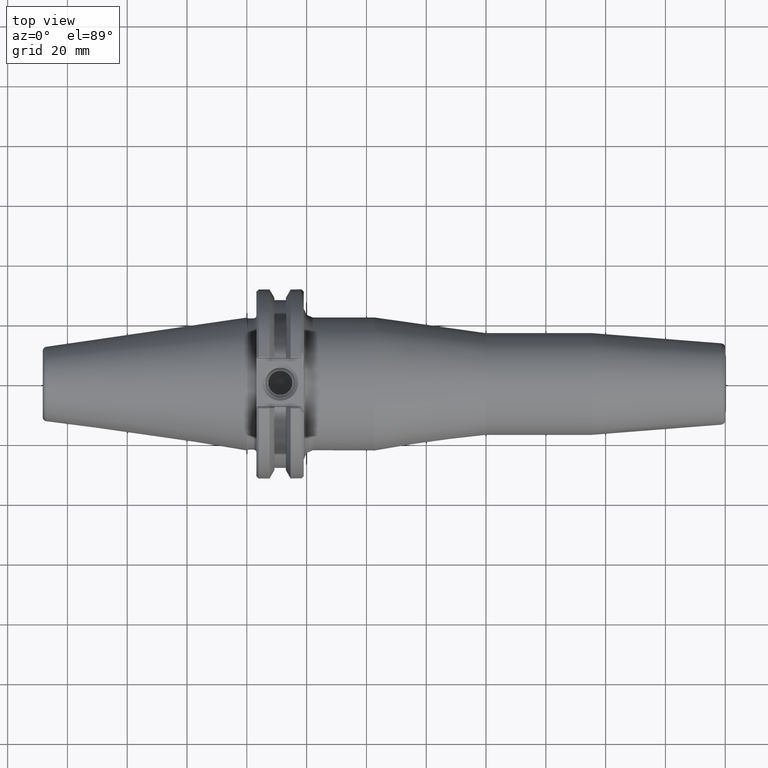
[diagram: clean part render]
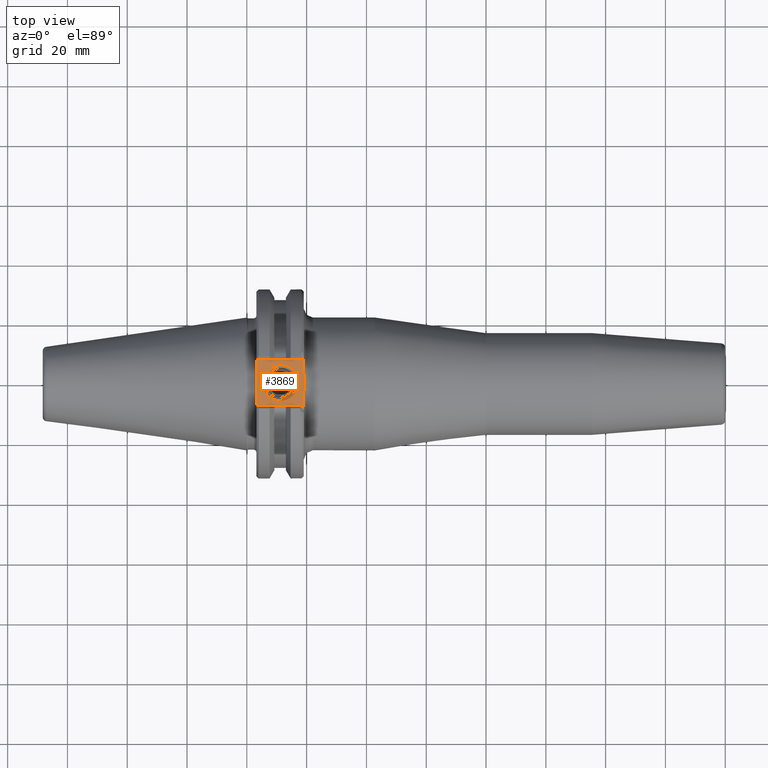
[diagram: same view with one face highlighted and labeled with its STEP entity id]
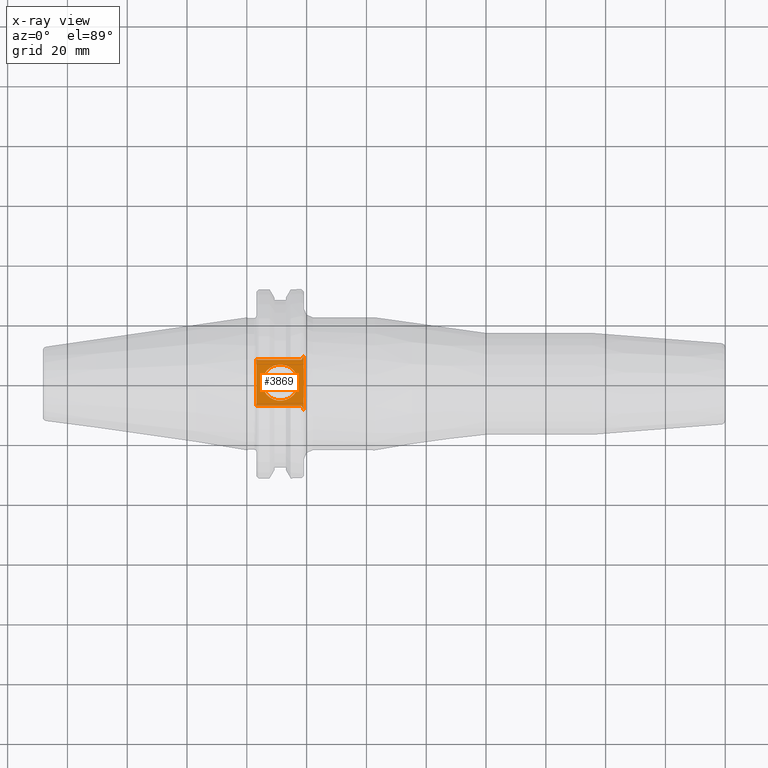
[diagram: x-ray of the same camera — body ghosted, the highlighted face saturated]
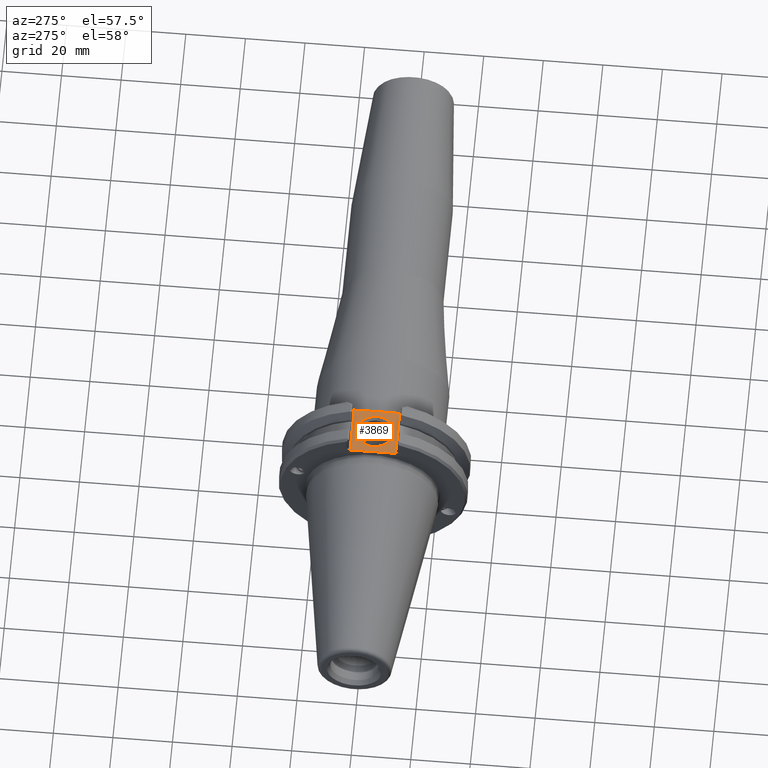
[diagram: same view with one face highlighted and labeled with its STEP entity id]
A machine part, top view. The second image highlights one B-rep face of the part: STEP entity #3869.
The next image is the same camera in x-ray: the body ghosted, the highlighted face saturated — about 0% of this face is hidden behind the body in this view.
A second angle (auxiliary view) of the same face is appended — the face is thin or edge-on in the first view.
In plain terms, the highlighted planar face has unit normal (0, 0, 1).
Its self-contained STEP definition (entity closure, byte-faithful):
#479=CARTESIAN_POINT('',(19.050000000000004,5.402562684504498,24.688799999999993));
#480=VERTEX_POINT('',#479);
#488=CARTESIAN_POINT('',(19.050000000000004,-5.402562684504498,24.688799999999993));
#489=VERTEX_POINT('',#488);
#490=CARTESIAN_POINT('',(19.050000000000004,5.402562684504498,24.688799999999993));
#491=CARTESIAN_POINT('',(19.050000000000004,5.383468711271515,24.688799999999993));
#492=CARTESIAN_POINT('',(19.050008016180790,5.364670221105220,24.688799999999993));
#493=CARTESIAN_POINT('',(19.050024145308559,5.345521375304905,24.688799999999993));
#494=CARTESIAN_POINT('',(19.050380813093376,4.922077745173089,24.688799999999993));
#495=CARTESIAN_POINT('',(19.055301162209282,4.434330201140024,24.688799999999993));
#496=CARTESIAN_POINT('',(19.061328638782147,3.998237449612195,24.688799999999993));
#497=CARTESIAN_POINT('',(19.063686312969995,3.827657836177733,24.688799999999993));
#498=CARTESIAN_POINT('',(19.066107310674042,3.667507714654955,24.688799999999993));
#499=CARTESIAN_POINT('',(19.068737014277765,3.499287180539350,24.688799999999993));
#500=CARTESIAN_POINT('',(19.085269540900832,2.441711545447185,24.688799999999993));
#501=CARTESIAN_POINT('',(19.104801828442643,1.236243264337343,24.688799999999993));
#502=CARTESIAN_POINT('',(19.106367928821307,0.189377434072701,24.688799999999993));
#503=CARTESIAN_POINT('',(19.106463278453251,0.125640605340913,24.688799999999993));
#504=CARTESIAN_POINT('',(19.106509675763604,0.062491773325476,24.688799999999993));
#505=CARTESIAN_POINT('',(19.106509675763604,1.387779E-016,24.688799999999993));
#506=CARTESIAN_POINT('',(19.106509675763604,-1.024486192835338,24.688799999999993));
#507=CARTESIAN_POINT('',(19.089042662835542,-2.225578175756351,24.688799999999993));
#508=CARTESIAN_POINT('',(19.071913131592947,-3.298483909167814,24.688799999999993));
#509=CARTESIAN_POINT('',(19.069273706202413,-3.463803940072831,24.688799999999993));
#510=CARTESIAN_POINT('',(19.066730526274132,-3.626081850065961,24.688799999999993));
#511=CARTESIAN_POINT('',(19.064394036519808,-3.784203266134315,24.688799999999993));
#512=CARTESIAN_POINT('',(19.062364187389413,-3.921572847280130,24.688799999999993));
#513=CARTESIAN_POINT('',(19.060350408300362,-4.065005863419290,24.688799999999993));
#514=CARTESIAN_POINT('',(19.058491219464514,-4.212775752534056,24.688799999999993));
#515=CARTESIAN_POINT('',(19.054503033649432,-4.529760108453766,24.688799999999993));
#516=CARTESIAN_POINT('',(19.051384776908289,-4.863115934162072,24.688799999999993));
#517=CARTESIAN_POINT('',(19.050381639759202,-5.172240603531262,24.688799999999993));
#518=CARTESIAN_POINT('',(19.050126701476685,-5.250801857457457,24.688799999999993));
#519=CARTESIAN_POINT('',(19.050000000000004,-5.326963511867858,24.688799999999993));
#520=CARTESIAN_POINT('',(19.050000000000004,-5.402562684504501,24.688799999999993));
#521=B_SPLINE_CURVE_WITH_KNOTS('',3,(#490,#491,#492,#493,#494,#495,#496,#497,#498,#499,#500,#501,#502,#503,#504,#505,#506,#507,#508,#509,#510,#511,#512,#513,#514,#515,#516,#517,#518,#519,#520),.UNSPECIFIED.,.F.,.U.,(4,3,3,3,3,3,3,3,3,3,4),(5.175172533235751,5.180835069389998,5.306052269941444,5.355031533161434,5.662956339598139,5.681703871595782,5.989049729446384,6.036407502954436,6.077550048174162,6.165805803629484,6.188235209955812),.UNSPECIFIED.);
#522=EDGE_CURVE('',#489,#480,#521,.F.);
#579=CARTESIAN_POINT('',(19.050000000000004,-9.016999999992867,24.688799999999993));
#580=VERTEX_POINT('',#579);
#581=CARTESIAN_POINT('',(19.050000000000004,-5.402562684504499,24.688799999999993));
#582=DIRECTION('',(0.0,-1.0,0.0));
#583=VECTOR('',#582,3.614437315488367);
#584=LINE('',#581,#583);
#585=EDGE_CURVE('',#489,#580,#584,.T.);
#3245=CARTESIAN_POINT('',(3.174999999999999,8.044579510321601,24.688799999999993));
#3246=VERTEX_POINT('',#3245);
#3254=CARTESIAN_POINT('',(3.599579510314465,7.620000000007136,24.688799999999993));
#3255=VERTEX_POINT('',#3254);
#3256=CARTESIAN_POINT('',(3.175000000000000,8.044579510321601,24.688799999999993));
#3257=DIRECTION('',(0.707106781186548,-0.707106781186547,0.0));
#3258=VECTOR('',#3257,0.600446101792443);
#3259=LINE('',#3256,#3258);
#3260=EDGE_CURVE('',#3246,#3255,#3259,.T.);
#3279=CARTESIAN_POINT('',(18.243441673942094,7.620000000007138,24.688799999999993));
#3280=VERTEX_POINT('',#3279);
#3281=CARTESIAN_POINT('',(3.599579510314465,7.620000000007136,24.688799999999993));
#3282=DIRECTION('',(1.0,0.0,0.0));
#3283=VECTOR('',#3282,14.643862163627629);
#3284=LINE('',#3281,#3283);
#3285=EDGE_CURVE('',#3255,#3280,#3284,.T.);
#3302=CARTESIAN_POINT('',(19.050000000000004,9.017000000007140,24.688799999999993));
#3303=VERTEX_POINT('',#3302);
#3304=CARTESIAN_POINT('',(18.243441673942094,7.620000000007138,24.688799999999993));
#3305=DIRECTION('',(0.500000000000001,0.866025403784438,0.0));
#3306=VECTOR('',#3305,1.613116652115819);
#3307=LINE('',#3304,#3306);
#3308=EDGE_CURVE('',#3280,#3303,#3307,.T.);
#3383=CARTESIAN_POINT('',(18.243441673942094,-7.619999999992865,24.688799999999993));
#3384=VERTEX_POINT('',#3383);
#3385=CARTESIAN_POINT('',(19.050000000000004,-9.016999999992867,24.688799999999993));
#3386=DIRECTION('',(-0.500000000000000,0.866025403784438,0.0));
#3387=VECTOR('',#3386,1.613116652115819);
#3388=LINE('',#3385,#3387);
#3389=EDGE_CURVE('',#580,#3384,#3388,.T.);
#3408=CARTESIAN_POINT('',(3.599579510314466,-7.619999999992867,24.688799999999993));
#3409=VERTEX_POINT('',#3408);
#3410=CARTESIAN_POINT('',(18.243441673942094,-7.619999999992865,24.688799999999993));
#3411=DIRECTION('',(-1.0,0.0,0.0));
#3412=VECTOR('',#3411,14.643862163627627);
#3413=LINE('',#3410,#3412);
#3414=EDGE_CURVE('',#3384,#3409,#3413,.T.);
#3431=CARTESIAN_POINT('',(3.174999999999999,-8.044579510307333,24.688799999999993));
#3432=VERTEX_POINT('',#3431);
#3433=CARTESIAN_POINT('',(3.599579510314467,-7.619999999992867,24.688799999999993));
#3434=DIRECTION('',(-0.707106781186549,-0.707106781186546,0.0));
#3435=VECTOR('',#3434,0.600446101792446);
#3436=LINE('',#3433,#3435);
#3437=EDGE_CURVE('',#3409,#3432,#3436,.T.);
#3786=CARTESIAN_POINT('',(17.214849999999995,7.372311E-012,24.688799999999993));
#3787=VERTEX_POINT('',#3786);
#3788=CARTESIAN_POINT('',(11.175999999999995,7.371571E-012,24.688799999999993));
#3789=DIRECTION('',(0.0,0.0,1.0));
#3790=DIRECTION('',(-1.0,0.0,0.0));
#3791=AXIS2_PLACEMENT_3D('',#3788,#3789,#3790);
#3792=CIRCLE('',#3791,6.038850000000000);
#3793=EDGE_CURVE('',#3787,#3787,#3792,.T.);
#3839=CARTESIAN_POINT('',(13.796340982085304,7.135363E-012,24.688799999999993));
#3840=DIRECTION('',(0.0,0.0,1.0));
#3841=DIRECTION('',(1.0,0.0,0.0));
#3842=AXIS2_PLACEMENT_3D('',#3839,#3840,#3841);
#3843=PLANE('',#3842);
#3844=ORIENTED_EDGE('',*,*,#3260,.F.);
#3845=CARTESIAN_POINT('',(3.174999999999999,8.044579510321601,24.688799999999993));
#3846=DIRECTION('',(0.0,-1.0,0.0));
#3847=VECTOR('',#3846,16.089159020628934);
#3848=LINE('',#3845,#3847);
#3849=EDGE_CURVE('',#3246,#3432,#3848,.T.);
#3850=ORIENTED_EDGE('',*,*,#3849,.T.);
#3851=ORIENTED_EDGE('',*,*,#3437,.F.);
#3852=ORIENTED_EDGE('',*,*,#3414,.F.);
#3853=ORIENTED_EDGE('',*,*,#3389,.F.);
#3854=ORIENTED_EDGE('',*,*,#585,.F.);
#3855=ORIENTED_EDGE('',*,*,#522,.T.);
#3856=CARTESIAN_POINT('',(19.050000000000004,9.017000000007140,24.688799999999993));
#3857=DIRECTION('',(0.0,-1.0,0.0));
#3858=VECTOR('',#3857,3.614437315502642);
#3859=LINE('',#3856,#3858);
#3860=EDGE_CURVE('',#3303,#480,#3859,.T.);
#3861=ORIENTED_EDGE('',*,*,#3860,.F.);
#3862=ORIENTED_EDGE('',*,*,#3308,.F.);
#3863=ORIENTED_EDGE('',*,*,#3285,.F.);
#3864=EDGE_LOOP('',(#3844,#3850,#3851,#3852,#3853,#3854,#3855,#3861,#3862,#3863));
#3865=FACE_OUTER_BOUND('',#3864,.T.);
#3866=ORIENTED_EDGE('',*,*,#3793,.F.);
#3867=EDGE_LOOP('',(#3866));
#3868=FACE_BOUND('',#3867,.T.);
#3869=ADVANCED_FACE('',(#3865,#3868),#3843,.T.);